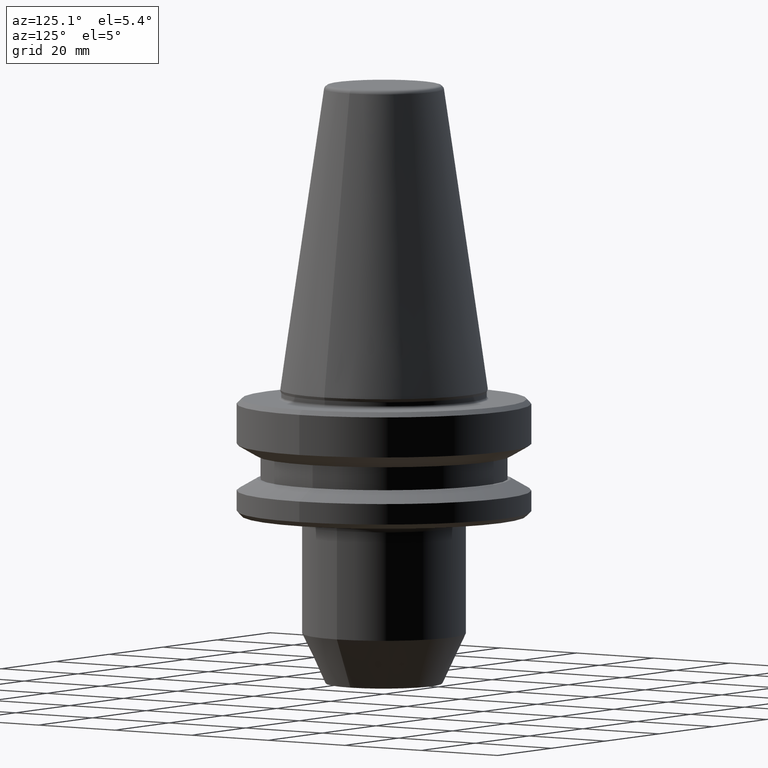
[diagram: clean part render]
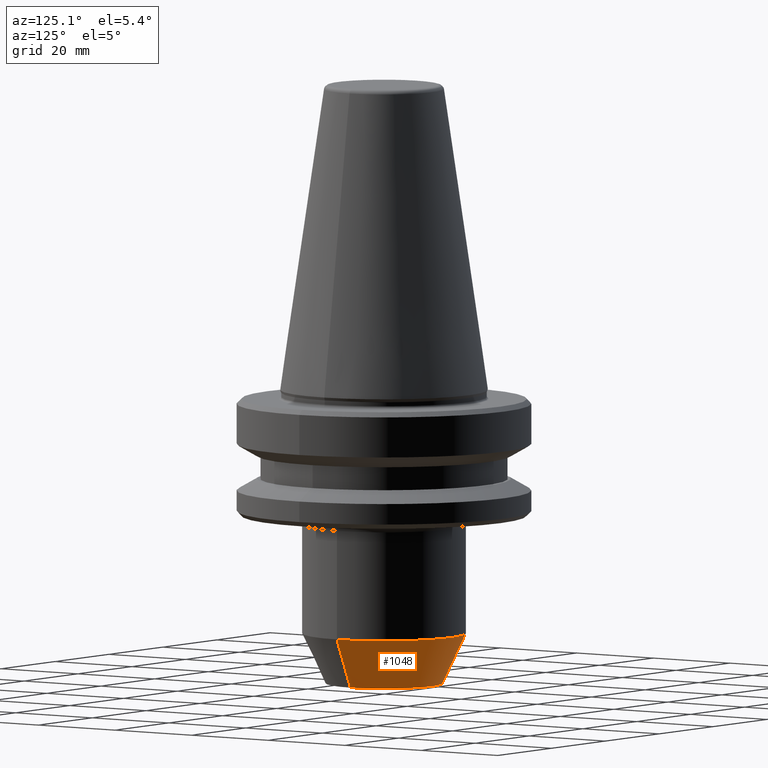
[diagram: same view with one face highlighted and labeled with its STEP entity id]
A machine part, auxiliary view. The second image highlights one B-rep face of the part: STEP entity #1048.
In plain terms, the highlighted conical surface has half-angle 25 deg.
Its self-contained STEP definition (entity closure, byte-faithful):
#7 = DIRECTION ( 'NONE',  ( 1.000000000000000000, 0.0000000000000000000, 0.0000000000000000000 ) ) ;
#31 = AXIS2_PLACEMENT_3D ( 'NONE', #676, #1004, #66 ) ;
#39 = EDGE_CURVE ( 'NONE', #492, #925, #869, .T. ) ;
#66 = DIRECTION ( 'NONE',  ( 1.000000000000000000, 0.0000000000000000000, 0.0000000000000000000 ) ) ;
#165 = DIRECTION ( 'NONE',  ( 0.4226182617407009400, 0.0000000000000000000, 0.9063077870366492700 ) ) ;
#174 = DIRECTION ( 'NONE',  ( -0.0000000000000000000, -0.0000000000000000000, 1.000000000000000000 ) ) ;
#195 = EDGE_CURVE ( 'NONE', #492, #210, #383, .T. ) ;
#210 = VERTEX_POINT ( 'NONE', #689 ) ;
#211 = EDGE_LOOP ( 'NONE', ( #224, #597, #981, #282 ) ) ;
#224 = ORIENTED_EDGE ( 'NONE', *, *, #195, .T. ) ;
#271 = CONICAL_SURFACE ( 'NONE', #805, 12.49999999999840100, 0.4363323129985840500 ) ;
#282 = ORIENTED_EDGE ( 'NONE', *, *, #39, .F. ) ;
#312 = EDGE_CURVE ( 'NONE', #210, #568, #346, .T. ) ;
#346 = LINE ( 'NONE', #552, #349 ) ;
#349 = VECTOR ( 'NONE', #511, 1000.000000000000000 ) ;
#383 = CIRCLE ( 'NONE', #814, 12.49999999999840100 ) ;
#443 = CARTESIAN_POINT ( 'NONE',  ( -17.49999999999829500, 2.143131898507659200E-015, -52.27746539756472500 ) ) ;
#460 = CARTESIAN_POINT ( 'NONE',  ( 0.0000000000000000000, 0.0000000000000000000, -63.00000000011224400 ) ) ;
#492 = VERTEX_POINT ( 'NONE', #525 ) ;
#511 = DIRECTION ( 'NONE',  ( -0.4226182617407009400, 5.175581015019677300E-017, 0.9063077870366492700 ) ) ;
#525 = CARTESIAN_POINT ( 'NONE',  ( 12.49999999999840100, 0.0000000000000000000, -63.00000000011224400 ) ) ;
#552 = CARTESIAN_POINT ( 'NONE',  ( -12.49999999999840100, 1.530808498933995700E-015, -63.00000000011224400 ) ) ;
#568 = VERTEX_POINT ( 'NONE', #443 ) ;
#597 = ORIENTED_EDGE ( 'NONE', *, *, #312, .T. ) ;
#662 = DIRECTION ( 'NONE',  ( 1.000000000000000000, 0.0000000000000000000, 0.0000000000000000000 ) ) ;
#676 = CARTESIAN_POINT ( 'NONE',  ( 0.0000000000000000000, 0.0000000000000000000, -52.27746539756472500 ) ) ;
#687 = CARTESIAN_POINT ( 'NONE',  ( 12.49999999999840100, 0.0000000000000000000, -63.00000000011224400 ) ) ;
#689 = CARTESIAN_POINT ( 'NONE',  ( -12.49999999999840100, 1.836970198720827200E-015, -63.00000000011224400 ) ) ;
#690 = CARTESIAN_POINT ( 'NONE',  ( 0.0000000000000000000, 0.0000000000000000000, -63.00000000011224400 ) ) ;
#733 = FACE_OUTER_BOUND ( 'NONE', #211, .T. ) ;
#748 = CARTESIAN_POINT ( 'NONE',  ( 17.49999999999829500, 0.0000000000000000000, -52.27746539756472500 ) ) ;
#805 = AXIS2_PLACEMENT_3D ( 'NONE', #690, #174, #7 ) ;
#814 = AXIS2_PLACEMENT_3D ( 'NONE', #460, #1019, #662 ) ;
#869 = LINE ( 'NONE', #687, #903 ) ;
#903 = VECTOR ( 'NONE', #165, 1000.000000000000000 ) ;
#925 = VERTEX_POINT ( 'NONE', #748 ) ;
#969 = EDGE_CURVE ( 'NONE', #925, #568, #1039, .T. ) ;
#981 = ORIENTED_EDGE ( 'NONE', *, *, #969, .F. ) ;
#1004 = DIRECTION ( 'NONE',  ( -0.0000000000000000000, -0.0000000000000000000, 1.000000000000000000 ) ) ;
#1019 = DIRECTION ( 'NONE',  ( -0.0000000000000000000, -0.0000000000000000000, 1.000000000000000000 ) ) ;
#1039 = CIRCLE ( 'NONE', #31, 17.49999999999829500 ) ;
#1048 = ADVANCED_FACE ( 'NONE', ( #733 ), #271, .T. ) ;